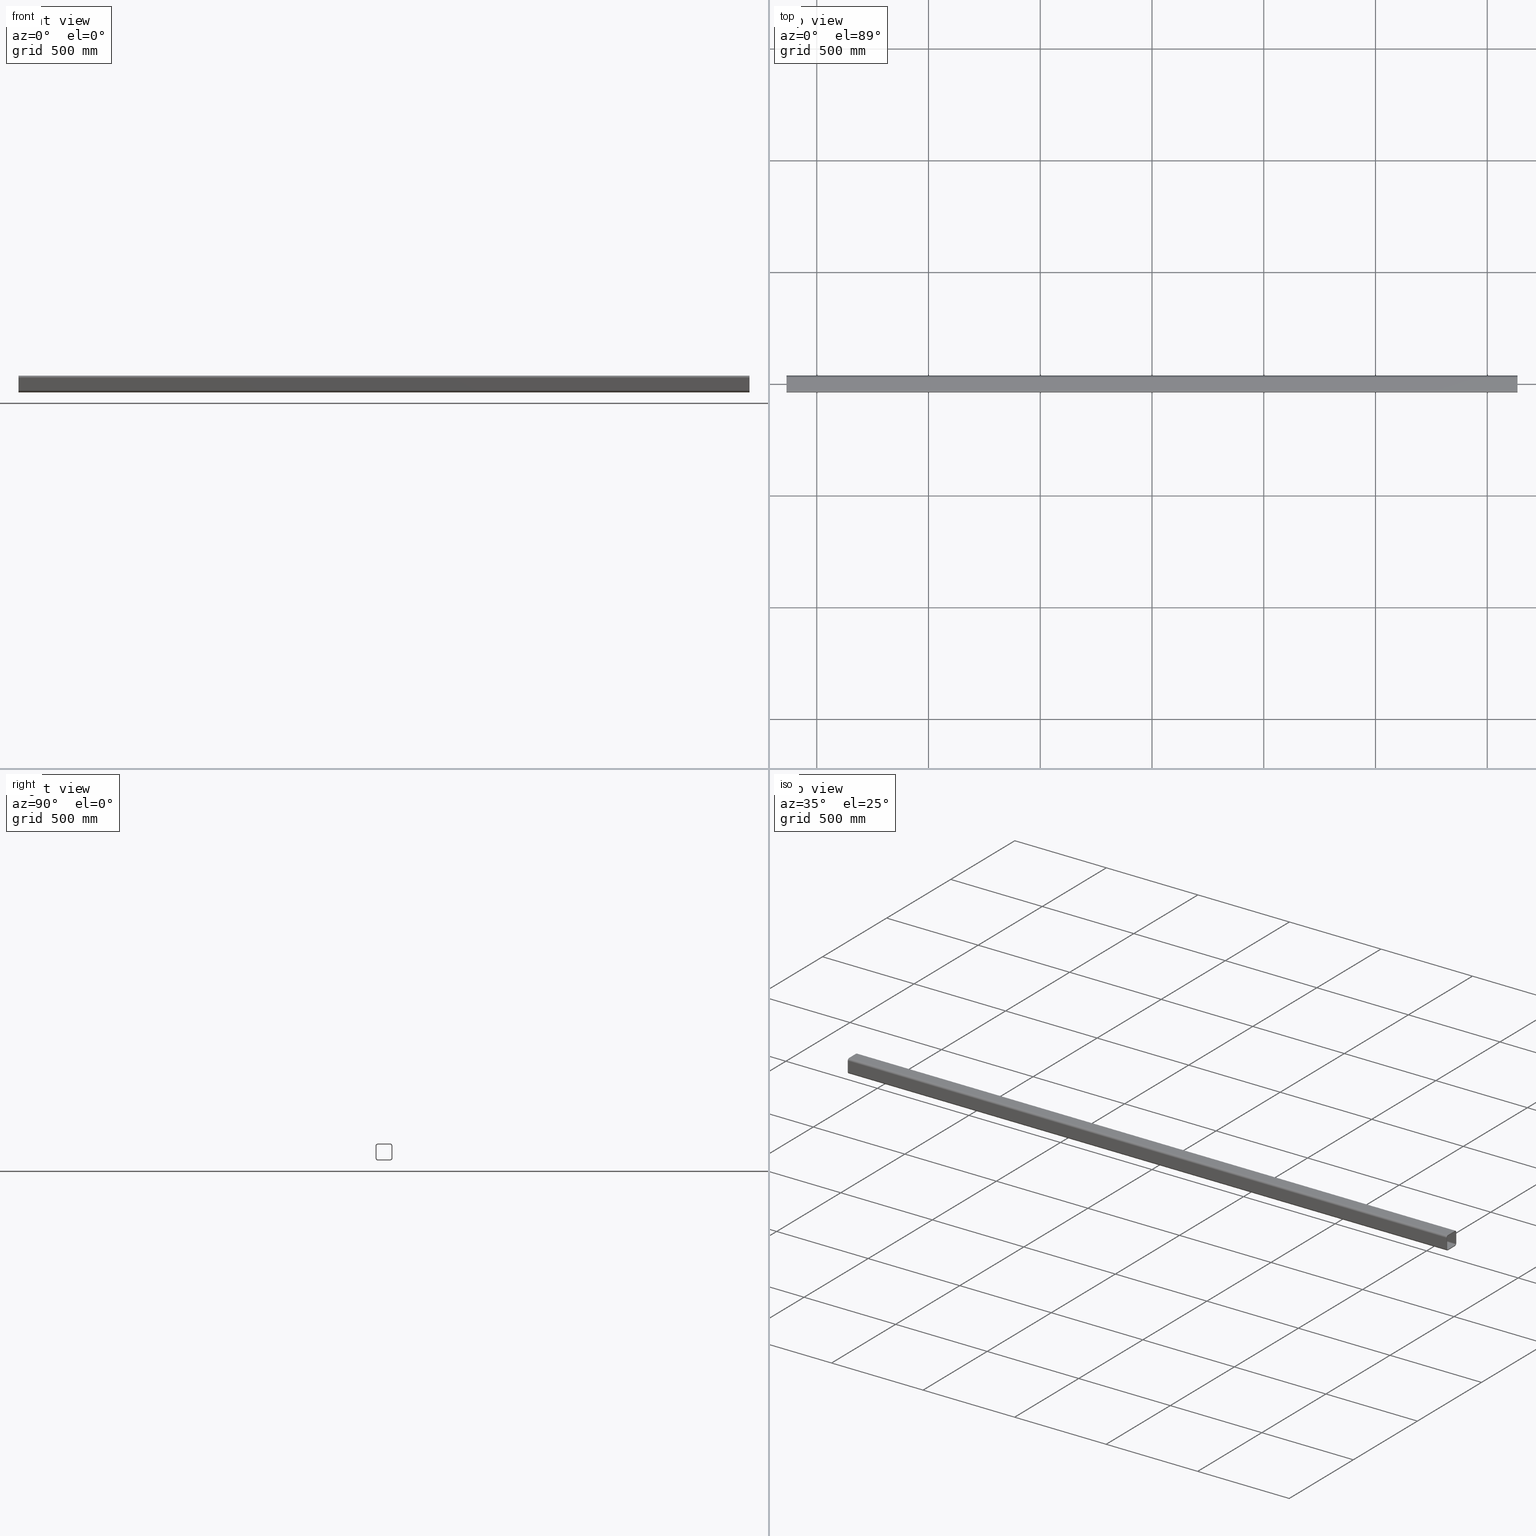
[diagram: canonical four-view strip — front | top / right | iso, engineering-drawing reading convention]
A machine part, canonical four-view strip (front | top / right | iso — engineering-drawing reading convention). The complete STEP part file that produces these views, byte-faithful:
ISO-10303-21;
HEADER;
FILE_DESCRIPTION (( 'STEP AP203' ),
    '1' );
FILE_NAME ('3982-32-10_REV_.step',
    '2026-01-19T05:59:23',
    ( '' ),
    ( '' ),
    'SwSTEP 2.0',
    'SolidWorks 2025',
    '' );
FILE_SCHEMA (( 'CONFIG_CONTROL_DESIGN' ));
ENDSEC;

DATA;
#1 = LINE ( 'NONE', #68, #85 ) ;
#2 = AXIS2_PLACEMENT_3D ( 'NONE', #314, #575, #317 ) ;
#3 = PLANE ( 'NONE',  #495 ) ;
#4 = EDGE_CURVE ( 'NONE', #432, #269, #474, .T. ) ;
#5 = CIRCLE ( 'NONE', #229, 6.000000000000019540 ) ;
#6 = ORIENTED_EDGE ( 'NONE', *, *, #499, .F. ) ;
#7 = CARTESIAN_POINT ( 'NONE',  ( 1635.500000000000000, 33.50000000000061817, -27.50000000000010303 ) ) ;
#8 = CC_DESIGN_PERSON_AND_ORGANIZATION_ASSIGNMENT ( #275, #630, ( #488 ) ) ;
#9 = CARTESIAN_POINT ( 'NONE',  ( -1635.500000000000000, -27.50000000000039790, 27.49999999999987210 ) ) ;
#10 = DIRECTION ( 'NONE',  ( 3.862588276837755925E-32, -1.261617073437677013E-16, -1.000000000000000000 ) ) ;
#11 = AXIS2_PLACEMENT_3D ( 'NONE', #408, #307, #349 ) ;
#12 = DIRECTION ( 'NONE',  ( -0.000000000000000000, 1.000000000000000000, -1.261617073437677506E-16 ) ) ;
#13 = CARTESIAN_POINT ( 'NONE',  ( -1635.500000000000000, 37.49999999999962341, -27.50000000000010303 ) ) ;
#14 = ORIENTED_EDGE ( 'NONE', *, *, #140, .F. ) ;
#15 = VECTOR ( 'NONE', #383, 1000.000000000000000 ) ;
#16 = EDGE_CURVE ( 'NONE', #217, #491, #237, .T. ) ;
#17 = PERSON_AND_ORGANIZATION ( #412, #467 ) ;
#18 = ORIENTED_EDGE ( 'NONE', *, *, #296, .T. ) ;
#19 = COORDINATED_UNIVERSAL_TIME_OFFSET ( 10, 0, .AHEAD. ) ;
#20 = CARTESIAN_POINT ( 'NONE',  ( -1635.500000000000000, -27.50000000000039790, -27.50000000000011369 ) ) ;
#21 = ORIENTED_EDGE ( 'NONE', *, *, #23, .F. ) ;
#22 = DIRECTION ( 'NONE',  ( 0.000000000000000000, 1.000000000000000000, 0.000000000000000000 ) ) ;
#23 = EDGE_CURVE ( 'NONE', #169, #606, #246, .T. ) ;
#24 = VERTEX_POINT ( 'NONE', #242 ) ;
#25 = VECTOR ( 'NONE', #191, 1000.000000000000000 ) ;
#26 = DATE_AND_TIME ( #222, #544 ) ;
#27 = CARTESIAN_POINT ( 'NONE',  ( 1635.500000000000000, 27.50000000000062528, -37.50000000000012790 ) ) ;
#28 = ORIENTED_EDGE ( 'NONE', *, *, #113, .T. ) ;
#29 = PERSON_AND_ORGANIZATION ( #412, #467 ) ;
#30 = CARTESIAN_POINT ( 'NONE',  ( 1635.500000000000000, -27.49999999999941735, -33.50000000000014211 ) ) ;
#31 = ORIENTED_EDGE ( 'NONE', *, *, #449, .T. ) ;
#32 = ADVANCED_FACE ( 'NONE', ( #147 ), #647, .T. ) ;
#33 = DIRECTION ( 'NONE',  ( 0.000000000000000000, -1.000000000000000000, 0.000000000000000000 ) ) ;
#34 = EDGE_LOOP ( 'NONE', ( #70, #382, #564, #300 ) ) ;
#35 = AXIS2_PLACEMENT_3D ( 'NONE', #425, #617, #90 ) ;
#36 = COORDINATED_UNIVERSAL_TIME_OFFSET ( 10, 0, .AHEAD. ) ;
#37 = VECTOR ( 'NONE', #634, 1000.000000000000000 ) ;
#38 = ADVANCED_FACE ( 'NONE', ( #190 ), #96, .T. ) ;
#39 = CARTESIAN_POINT ( 'NONE',  ( -1635.500000000000000, 27.49999999999962341, -37.50000000000012790 ) ) ;
#40 = EDGE_LOOP ( 'NONE', ( #622, #536, #315, #286 ) ) ;
#41 = SECURITY_CLASSIFICATION ( '', '', #569 ) ;
#42 = DIRECTION ( 'NONE',  ( -3.061616997868382648E-16, 1.000000000000000000, 0.000000000000000000 ) ) ;
#43 = ORIENTED_EDGE ( 'NONE', *, *, #4, .F. ) ;
#44 = ADVANCED_FACE ( 'NONE', ( #288 ), #487, .F. ) ;
#45 = CALENDAR_DATE ( 2026, 19, 1 ) ;
#46 = CARTESIAN_POINT ( 'NONE',  ( -1635.500000000000000, 27.49999999999962341, -37.50000000000012790 ) ) ;
#47 = ORIENTED_EDGE ( 'NONE', *, *, #333, .F. ) ;
#48 = LINE ( 'NONE', #549, #15 ) ;
#49 = AXIS2_PLACEMENT_3D ( 'NONE', #341, #226, #496 ) ;
#50 = ORIENTED_EDGE ( 'NONE', *, *, #311, .T. ) ;
#51 = APPROVAL_PERSON_ORGANIZATION ( #29, #176, #86 ) ;
#52 = DIRECTION ( 'NONE',  ( 1.000000000000000000, 3.061616997868382648E-16, -0.000000000000000000 ) ) ;
#53 = VERTEX_POINT ( 'NONE', #263 ) ;
#54 = EDGE_CURVE ( 'NONE', #269, #253, #208, .T. ) ;
#55 = DESIGN_CONTEXT ( 'detailed design', #198, 'design' ) ;
#56 = DIRECTION ( 'NONE',  ( -1.000000000000000000, -3.061616997868382648E-16, 0.000000000000000000 ) ) ;
#57 = FACE_OUTER_BOUND ( 'NONE', #183, .T. ) ;
#58 = ORIENTED_EDGE ( 'NONE', *, *, #397, .F. ) ;
#59 = FACE_OUTER_BOUND ( 'NONE', #547, .T. ) ;
#60 = ADVANCED_FACE ( 'NONE', ( #559 ), #158, .F. ) ;
#61 = PLANE ( 'NONE',  #179 ) ;
#62 = AXIS2_PLACEMENT_3D ( 'NONE', #446, #652, #112 ) ;
#63 = VERTEX_POINT ( 'NONE', #556 ) ;
#64 = FACE_OUTER_BOUND ( 'NONE', #340, .T. ) ;
#65 = CC_DESIGN_APPROVAL ( #194, ( #488 ) ) ;
#66 = DIRECTION ( 'NONE',  ( -1.000000000000000000, -3.061616997868382648E-16, 0.000000000000000000 ) ) ;
#67 = VERTEX_POINT ( 'NONE', #165 ) ;
#68 = CARTESIAN_POINT ( 'NONE',  ( -1635.500000000000000, -37.50000000000039790, 27.49999999999987566 ) ) ;
#69 = DIRECTION ( 'NONE',  ( 1.000000000000000000, 3.061616997868382648E-16, -0.000000000000000000 ) ) ;
#70 = ORIENTED_EDGE ( 'NONE', *, *, #499, .T. ) ;
#71 = ADVANCED_FACE ( 'NONE', ( #653 ), #3, .T. ) ;
#72 = DATE_AND_TIME ( #364, #577 ) ;
#73 = CARTESIAN_POINT ( 'NONE',  ( 1635.500000000000000, 27.50000000000062528, -27.50000000000010303 ) ) ;
#74 = ORIENTED_EDGE ( 'NONE', *, *, #369, .T. ) ;
#75 =( NAMED_UNIT ( * ) PLANE_ANGLE_UNIT ( ) SI_UNIT ( $, .RADIAN. ) );
#76 = LOCAL_TIME ( 16, 59, 23.00000000000000000, #36 ) ;
#77 = ORIENTED_EDGE ( 'NONE', *, *, #595, .T. ) ;
#78 = EDGE_CURVE ( 'NONE', #67, #63, #111, .T. ) ;
#79 = PLANE ( 'NONE',  #35 ) ;
#80 = VERTEX_POINT ( 'NONE', #567 ) ;
#81 = APPROVAL_STATUS ( 'not_yet_approved' ) ;
#82 = LINE ( 'NONE', #27, #228 ) ;
#83 = MANIFOLD_SOLID_BREP ( 'Shs 75X75X4.0 SHS(1)', #195 ) ;
#84 = ORIENTED_EDGE ( 'NONE', *, *, #480, .T. ) ;
#85 = VECTOR ( 'NONE', #566, 1000.000000000000000 ) ;
#86 = APPROVAL_ROLE ( '' ) ;
#87 = CARTESIAN_POINT ( 'NONE',  ( -1635.500000000000000, -27.50000000000041922, -33.50000000000014211 ) ) ;
#88 = EDGE_LOOP ( 'NONE', ( #31, #290, #186, #277 ) ) ;
#89 = EDGE_CURVE ( 'NONE', #305, #217, #417, .T. ) ;
#90 = DIRECTION ( 'NONE',  ( -1.000000000000000000, -3.061616997868382648E-16, 0.000000000000000000 ) ) ;
#91 = CC_DESIGN_PERSON_AND_ORGANIZATION_ASSIGNMENT ( #17, #360, ( #488 ) ) ;
#92 = APPROVAL_DATE_TIME ( #239, #187 ) ;
#93 = FACE_BOUND ( 'NONE', #462, .T. ) ;
#94 = ORIENTED_EDGE ( 'NONE', *, *, #358, .F. ) ;
#95 = PLANE ( 'NONE',  #251 ) ;
#96 = PLANE ( 'NONE',  #298 ) ;
#97 = DIRECTION ( 'NONE',  ( 1.000000000000000000, 3.061616997868382648E-16, -0.000000000000000000 ) ) ;
#98 = DIRECTION ( 'NONE',  ( -1.000000000000000000, -3.061616997868382648E-16, 0.000000000000000000 ) ) ;
#99 = DIRECTION ( 'NONE',  ( -3.862588276837757567E-32, 1.261617073437677506E-16, 1.000000000000000000 ) ) ;
#100 = CARTESIAN_POINT ( 'NONE',  ( -1635.500000000000000, -27.50000000000039790, -27.50000000000011369 ) ) ;
#101 = CARTESIAN_POINT ( 'NONE',  ( -1635.500000000000000, 33.49999999999962341, -27.50000000000010303 ) ) ;
#102 = VECTOR ( 'NONE', #585, 1000.000000000000000 ) ;
#103 = ORIENTED_EDGE ( 'NONE', *, *, #423, .T. ) ;
#104 = DIRECTION ( 'NONE',  ( -1.000000000000000000, -3.061616997868382648E-16, 0.000000000000000000 ) ) ;
#105 = CARTESIAN_POINT ( 'NONE',  ( 1635.500000000000000, -27.49999999999941735, 33.49999999999991473 ) ) ;
#106 = VERTEX_POINT ( 'NONE', #513 ) ;
#107 = ADVANCED_FACE ( 'NONE', ( #347 ), #114, .F. ) ;
#108 = CARTESIAN_POINT ( 'NONE',  ( 1635.500000000000000, 33.50000000000061817, 27.49999999999986144 ) ) ;
#109 = CARTESIAN_POINT ( 'NONE',  ( 1635.500000000000000, 33.50000000000061817, -27.50000000000010303 ) ) ;
#110 = VERTEX_POINT ( 'NONE', #105 ) ;
#111 = CIRCLE ( 'NONE', #11, 10.00000000000000533 ) ;
#112 = DIRECTION ( 'NONE',  ( -1.000000000000000000, -3.061616997868382648E-16, 0.000000000000000000 ) ) ;
#113 = EDGE_CURVE ( 'NONE', #422, #24, #530, .T. ) ;
#114 = CYLINDRICAL_SURFACE ( 'NONE', #377, 6.000000000000019540 ) ;
#115 = CARTESIAN_POINT ( 'NONE',  ( 1635.500000000000000, 27.50000000000062883, -37.50000000000011369 ) ) ;
#116 = CARTESIAN_POINT ( 'NONE',  ( -1635.500000000000000, -27.50000000000039790, 27.49999999999987210 ) ) ;
#117 = ORIENTED_EDGE ( 'NONE', *, *, #545, .F. ) ;
#118 = DIRECTION ( 'NONE',  ( 0.000000000000000000, 1.000000000000000000, 0.000000000000000000 ) ) ;
#119 = DIRECTION ( 'NONE',  ( -0.000000000000000000, -0.000000000000000000, -1.000000000000000000 ) ) ;
#120 = VERTEX_POINT ( 'NONE', #109 ) ;
#121 = CARTESIAN_POINT ( 'NONE',  ( -1635.500000000000000, -37.50000000000039790, -27.50000000000011724 ) ) ;
#122 = AXIS2_PLACEMENT_3D ( 'NONE', #20, #171, #273 ) ;
#123 = ORIENTED_EDGE ( 'NONE', *, *, #358, .T. ) ;
#124 = AXIS2_PLACEMENT_3D ( 'NONE', #433, #587, #638 ) ;
#125 = EDGE_CURVE ( 'NONE', #120, #436, #365, .T. ) ;
#126 = DATE_TIME_ROLE ( 'classification_date' ) ;
#127 = ORIENTED_EDGE ( 'NONE', *, *, #303, .F. ) ;
#128 = EDGE_CURVE ( 'NONE', #80, #348, #252, .T. ) ;
#129 = FACE_OUTER_BOUND ( 'NONE', #612, .T. ) ;
#130 = ORIENTED_EDGE ( 'NONE', *, *, #16, .T. ) ;
#131 = AXIS2_PLACEMENT_3D ( 'NONE', #611, #353, #396 ) ;
#132 = PERSON_AND_ORGANIZATION ( #412, #467 ) ;
#133 = CYLINDRICAL_SURFACE ( 'NONE', #122, 6.000000000000025757 ) ;
#134 = ADVANCED_FACE ( 'NONE', ( #57 ), #61, .F. ) ;
#135 = VERTEX_POINT ( 'NONE', #392 ) ;
#136 = AXIS2_PLACEMENT_3D ( 'NONE', #371, #428, #375 ) ;
#137 = CIRCLE ( 'NONE', #289, 6.000000000000019540 ) ;
#138 = DIRECTION ( 'NONE',  ( 0.000000000000000000, 1.000000000000000000, 0.000000000000000000 ) ) ;
#139 = CIRCLE ( 'NONE', #649, 10.00000000000000888 ) ;
#140 = EDGE_CURVE ( 'NONE', #110, #141, #615, .T. ) ;
#141 = VERTEX_POINT ( 'NONE', #504 ) ;
#142 = LINE ( 'NONE', #339, #452 ) ;
#143 = ORIENTED_EDGE ( 'NONE', *, *, #595, .F. ) ;
#144 = DIRECTION ( 'NONE',  ( 1.000000000000000000, 3.061616997868382648E-16, -0.000000000000000000 ) ) ;
#145 = CARTESIAN_POINT ( 'NONE',  ( -1635.500000000000000, 33.49999999999962341, 27.49999999999986144 ) ) ;
#146 = LINE ( 'NONE', #149, #394 ) ;
#147 = FACE_OUTER_BOUND ( 'NONE', #34, .T. ) ;
#148 = LINE ( 'NONE', #650, #209 ) ;
#149 = CARTESIAN_POINT ( 'NONE',  ( 1635.500000000000000, -33.49999999999941025, -27.50000000000008882 ) ) ;
#150 = ORIENTED_EDGE ( 'NONE', *, *, #614, .F. ) ;
#151 = CYLINDRICAL_SURFACE ( 'NONE', #292, 10.00000000000000888 ) ;
#152 = AXIS2_PLACEMENT_3D ( 'NONE', #73, #66, #299 ) ;
#153 = DIRECTION ( 'NONE',  ( 0.000000000000000000, 1.000000000000000000, 0.000000000000000000 ) ) ;
#154 = DIRECTION ( 'NONE',  ( 0.000000000000000000, 0.000000000000000000, 1.000000000000000000 ) ) ;
#155 = DIRECTION ( 'NONE',  ( -1.000000000000000000, -3.061616997868382648E-16, 0.000000000000000000 ) ) ;
#156 = VERTEX_POINT ( 'NONE', #457 ) ;
#157 = CARTESIAN_POINT ( 'NONE',  ( 1635.500000000000000, -37.49999999999940314, -27.50000000000011724 ) ) ;
#158 = PLANE ( 'NONE',  #131 ) ;
#159 = CARTESIAN_POINT ( 'NONE',  ( -1635.500000000000000, -33.50000000000041922, 27.49999999999987566 ) ) ;
#160 = CARTESIAN_POINT ( 'NONE',  ( -1635.500000000000000, -37.50000000000039790, -27.50000000000011724 ) ) ;
#161 = AXIS2_PLACEMENT_3D ( 'NONE', #554, #398, #259 ) ;
#162 = ORIENTED_EDGE ( 'NONE', *, *, #599, .F. ) ;
#163 = LINE ( 'NONE', #352, #464 ) ;
#164 = APPROVAL_PERSON_ORGANIZATION ( #316, #187, #583 ) ;
#165 = CARTESIAN_POINT ( 'NONE',  ( 1635.500000000000000, 27.50000000000062528, 37.49999999999987921 ) ) ;
#166 = LINE ( 'NONE', #121, #102 ) ;
#167 = EDGE_CURVE ( 'NONE', #606, #120, #570, .T. ) ;
#168 = CARTESIAN_POINT ( 'NONE',  ( -1635.500000000000000, 37.49999999999962341, -27.50000000000010303 ) ) ;
#169 = VERTEX_POINT ( 'NONE', #204 ) ;
#170 = CIRCLE ( 'NONE', #124, 6.000000000000023093 ) ;
#171 = DIRECTION ( 'NONE',  ( 1.000000000000000000, 3.061616997868382648E-16, -0.000000000000000000 ) ) ;
#172 = ORIENTED_EDGE ( 'NONE', *, *, #599, .T. ) ;
#173 = CALENDAR_DATE ( 2026, 19, 1 ) ;
#174 = DIRECTION ( 'NONE',  ( 0.000000000000000000, -1.000000000000000000, 1.261617073437677013E-16 ) ) ;
#175 = ORIENTED_EDGE ( 'NONE', *, *, #373, .T. ) ;
#176 = APPROVAL ( #81, 'UNSPECIFIED' ) ;
#177 = LINE ( 'NONE', #421, #565 ) ;
#178 = ORIENTED_EDGE ( 'NONE', *, *, #401, .T. ) ;
#179 = AXIS2_PLACEMENT_3D ( 'NONE', #13, #196, #453 ) ;
#180 = DIRECTION ( 'NONE',  ( 1.000000000000000000, 3.061616997868382648E-16, -0.000000000000000000 ) ) ;
#181 = AXIS2_PLACEMENT_3D ( 'NONE', #620, #374, #118 ) ;
#182 = PLANE ( 'NONE',  #624 ) ;
#183 = EDGE_LOOP ( 'NONE', ( #249, #258, #235, #326 ) ) ;
#184 = ADVANCED_FACE ( 'NONE', ( #310 ), #202, .T. ) ;
#185 = DIRECTION ( 'NONE',  ( -1.000000000000000000, -3.061616997868382648E-16, 0.000000000000000000 ) ) ;
#186 = ORIENTED_EDGE ( 'NONE', *, *, #627, .F. ) ;
#187 = APPROVAL ( #548, 'UNSPECIFIED' ) ;
#188 = VECTOR ( 'NONE', #402, 1000.000000000000000 ) ;
#189 = CARTESIAN_POINT ( 'NONE',  ( -1635.500000000000000, 27.49999999999962341, 33.49999999999987921 ) ) ;
#190 = FACE_OUTER_BOUND ( 'NONE', #505, .T. ) ;
#191 = DIRECTION ( 'NONE',  ( 0.000000000000000000, -1.000000000000000000, 1.261617073437677506E-16 ) ) ;
#192 = DIRECTION ( 'NONE',  ( 3.061616997868382648E-16, -1.000000000000000000, 0.000000000000000000 ) ) ;
#193 = DIRECTION ( 'NONE',  ( -1.000000000000000000, -3.061616997868382648E-16, 0.000000000000000000 ) ) ;
#194 = APPROVAL ( #427, 'UNSPECIFIED' ) ;
#195 = CLOSED_SHELL ( 'NONE', ( #553, #38, #44, #184, #107, #231, #244, #648, #134, #32, #430, #257, #518, #635, #60, #71, #490, #216 ) ) ;
#196 = DIRECTION ( 'NONE',  ( 3.061616997868382648E-16, -1.000000000000000000, 0.000000000000000000 ) ) ;
#197 = VECTOR ( 'NONE', #219, 1000.000000000000000 ) ;
#198 = APPLICATION_CONTEXT ( 'configuration controlled 3d designs of mechanical parts and assemblies' ) ;
#199 = DIRECTION ( 'NONE',  ( 0.000000000000000000, -1.000000000000000000, 0.000000000000000000 ) ) ;
#200 = CARTESIAN_POINT ( 'NONE',  ( -1635.500000000000000, 27.49999999999962341, -27.50000000000010303 ) ) ;
#201 = CARTESIAN_POINT ( 'NONE',  ( 1635.500000000000000, 27.50000000000062528, 27.49999999999986144 ) ) ;
#202 = PLANE ( 'NONE',  #519 ) ;
#203 = DIRECTION ( 'NONE',  ( -1.000000000000000000, -3.061616997868382648E-16, 0.000000000000000000 ) ) ;
#204 = CARTESIAN_POINT ( 'NONE',  ( -1635.500000000000000, 33.49999999999962341, 27.49999999999986144 ) ) ;
#205 = ORIENTED_EDGE ( 'NONE', *, *, #345, .T. ) ;
#206 = DIRECTION ( 'NONE',  ( 0.000000000000000000, 1.000000000000000000, 0.000000000000000000 ) ) ;
#207 = AXIS2_PLACEMENT_3D ( 'NONE', #241, #442, #33 ) ;
#208 = LINE ( 'NONE', #160, #438 ) ;
#209 = VECTOR ( 'NONE', #285, 1000.000000000000000 ) ;
#210 = ORIENTED_EDGE ( 'NONE', *, *, #437, .T. ) ;
#211 = DIRECTION ( 'NONE',  ( 0.000000000000000000, 0.000000000000000000, 1.000000000000000000 ) ) ;
#212 = DIRECTION ( 'NONE',  ( -0.000000000000000000, -0.000000000000000000, -1.000000000000000000 ) ) ;
#213 = ORIENTED_EDGE ( 'NONE', *, *, #140, .T. ) ;
#214 = DATE_TIME_ROLE ( 'creation_date' ) ;
#215 = DIRECTION ( 'NONE',  ( 1.000000000000000000, 3.061616997868382648E-16, -0.000000000000000000 ) ) ;
#216 = ADVANCED_FACE ( 'NONE', ( #294, #404 ), #248, .T. ) ;
#217 = VERTEX_POINT ( 'NONE', #625 ) ;
#218 = COORDINATED_UNIVERSAL_TIME_OFFSET ( 10, 0, .AHEAD. ) ;
#219 = DIRECTION ( 'NONE',  ( 1.000000000000000000, 3.061616997868382648E-16, -0.000000000000000000 ) ) ;
#220 = ORIENTED_EDGE ( 'NONE', *, *, #574, .T. ) ;
#221 = EDGE_CURVE ( 'NONE', #517, #497, #82, .T. ) ;
#222 = CALENDAR_DATE ( 2026, 19, 1 ) ;
#223 = APPROVAL_DATE_TIME ( #468, #176 ) ;
#224 = CARTESIAN_POINT ( 'NONE',  ( -1635.500000000000000, 27.49999999999962341, 27.49999999999986144 ) ) ;
#225 = EDGE_LOOP ( 'NONE', ( #376, #117, #416, #308 ) ) ;
#226 = DIRECTION ( 'NONE',  ( -1.000000000000000000, -3.061616997868382648E-16, 0.000000000000000000 ) ) ;
#227 = ORIENTED_EDGE ( 'NONE', *, *, #627, .T. ) ;
#228 = VECTOR ( 'NONE', #527, 1000.000000000000000 ) ;
#229 = AXIS2_PLACEMENT_3D ( 'NONE', #224, #378, #138 ) ;
#230 = DIRECTION ( 'NONE',  ( 0.000000000000000000, 2.523234146875357477E-16, 1.000000000000000000 ) ) ;
#231 = ADVANCED_FACE ( 'NONE', ( #524 ), #79, .T. ) ;
#232 = EDGE_LOOP ( 'NONE', ( #405, #47, #629, #130 ) ) ;
#233 = CARTESIAN_POINT ( 'NONE',  ( 1635.500000000000000, -33.49999999999941025, -27.50000000000008882 ) ) ;
#234 = EDGE_CURVE ( 'NONE', #156, #422, #268, .T. ) ;
#235 = ORIENTED_EDGE ( 'NONE', *, *, #234, .F. ) ;
#236 = DIRECTION ( 'NONE',  ( 0.000000000000000000, -1.000000000000000000, 1.261617073437677506E-16 ) ) ;
#237 = LINE ( 'NONE', #384, #539 ) ;
#238 = EDGE_CURVE ( 'NONE', #24, #517, #321, .T. ) ;
#239 = DATE_AND_TIME ( #45, #76 ) ;
#240 = VECTOR ( 'NONE', #276, 1000.000000000000000 ) ;
#241 = CARTESIAN_POINT ( 'NONE',  ( 1635.500000000000000, -27.49999999999939604, 27.49999999999987210 ) ) ;
#242 = CARTESIAN_POINT ( 'NONE',  ( -1635.500000000000000, 27.49999999999962697, -37.50000000000011369 ) ) ;
#243 = CC_DESIGN_SECURITY_CLASSIFICATION ( #41, ( #488 ) ) ;
#244 = ADVANCED_FACE ( 'NONE', ( #472 ), #133, .F. ) ;
#245 = DIRECTION ( 'NONE',  ( -0.000000000000000000, -0.000000000000000000, -1.000000000000000000 ) ) ;
#246 = LINE ( 'NONE', #145, #362 ) ;
#247 = DIRECTION ( 'NONE',  ( 1.000000000000000000, 3.061616997868382648E-16, -0.000000000000000000 ) ) ;
#248 = PLANE ( 'NONE',  #2 ) ;
#249 = ORIENTED_EDGE ( 'NONE', *, *, #379, .T. ) ;
#250 = VECTOR ( 'NONE', #212, 1000.000000000000000 ) ;
#251 = AXIS2_PLACEMENT_3D ( 'NONE', #284, #489, #42 ) ;
#252 = LINE ( 'NONE', #260, #419 ) ;
#253 = VERTEX_POINT ( 'NONE', #469 ) ;
#254 = AXIS2_PLACEMENT_3D ( 'NONE', #266, #211, #312 ) ;
#255 = CARTESIAN_POINT ( 'NONE',  ( -1635.500000000000000, 27.49999999999962341, -33.50000000000015632 ) ) ;
#256 = CARTESIAN_POINT ( 'NONE',  ( -1635.500000000000000, 27.49999999999962341, -33.50000000000015632 ) ) ;
#257 = ADVANCED_FACE ( 'NONE', ( #129 ), #578, .T. ) ;
#258 = ORIENTED_EDGE ( 'NONE', *, *, #281, .F. ) ;
#259 = DIRECTION ( 'NONE',  ( 0.000000000000000000, 1.000000000000000000, 0.000000000000000000 ) ) ;
#260 = CARTESIAN_POINT ( 'NONE',  ( -1635.500000000000000, -27.50000000000039080, 37.49999999999987921 ) ) ;
#261 = ORIENTED_EDGE ( 'NONE', *, *, #287, .T. ) ;
#262 = APPLICATION_PROTOCOL_DEFINITION ( 'international standard', 'config_control_design', 1994, #198 ) ;
#263 = CARTESIAN_POINT ( 'NONE',  ( 1635.500000000000000, 37.50000000000062528, -27.50000000000010303 ) ) ;
#264 = LOCAL_TIME ( 16, 59, 23.00000000000000000, #19 ) ;
#265 = PRODUCT_RELATED_PRODUCT_CATEGORY ( 'detail', '', ( #511 ) ) ;
#266 = CARTESIAN_POINT ( 'NONE',  ( 0.000000000000000000, 0.000000000000000000, 0.000000000000000000 ) ) ;
#267 = CC_DESIGN_APPROVAL ( #176, ( #459 ) ) ;
#268 = LINE ( 'NONE', #270, #250 ) ;
#269 = VERTEX_POINT ( 'NONE', #621 ) ;
#270 = CARTESIAN_POINT ( 'NONE',  ( -1635.500000000000000, 37.49999999999962341, -27.50000000000010303 ) ) ;
#271 = EDGE_LOOP ( 'NONE', ( #640, #18, #178, #568, #74, #213, #413, #426 ) ) ;
#272 = DATE_AND_TIME ( #173, #264 ) ;
#273 = DIRECTION ( 'NONE',  ( 0.000000000000000000, 1.000000000000000000, 0.000000000000000000 ) ) ;
#274 = ORIENTED_EDGE ( 'NONE', *, *, #493, .F. ) ;
#275 = PERSON_AND_ORGANIZATION ( #412, #467 ) ;
#276 = DIRECTION ( 'NONE',  ( 1.000000000000000000, 3.061616997868382648E-16, -0.000000000000000000 ) ) ;
#277 = ORIENTED_EDGE ( 'NONE', *, *, #128, .T. ) ;
#278 = CARTESIAN_POINT ( 'NONE',  ( -1635.500000000000000, 27.49999999999962341, -33.50000000000015632 ) ) ;
#279 = ORIENTED_EDGE ( 'NONE', *, *, #639, .T. ) ;
#280 = AXIS2_PLACEMENT_3D ( 'NONE', #100, #98, #342 ) ;
#281 = EDGE_CURVE ( 'NONE', #422, #53, #411, .T. ) ;
#282 = CARTESIAN_POINT ( 'NONE',  ( -1635.500000000000000, 37.49999999999962341, -27.50000000000010303 ) ) ;
#283 = ORIENTED_EDGE ( 'NONE', *, *, #591, .F. ) ;
#284 = CARTESIAN_POINT ( 'NONE',  ( -1635.500000000000000, 27.49999999999962341, 27.49999999999986144 ) ) ;
#285 = DIRECTION ( 'NONE',  ( 1.000000000000000000, 3.061616997868382648E-16, -0.000000000000000000 ) ) ;
#286 = ORIENTED_EDGE ( 'NONE', *, *, #545, .T. ) ;
#287 = EDGE_CURVE ( 'NONE', #253, #80, #643, .T. ) ;
#288 = FACE_OUTER_BOUND ( 'NONE', #329, .T. ) ;
#289 = AXIS2_PLACEMENT_3D ( 'NONE', #601, #104, #558 ) ;
#290 = ORIENTED_EDGE ( 'NONE', *, *, #393, .F. ) ;
#291 = ADVANCED_BREP_SHAPE_REPRESENTATION ( '3982-32-10_REV_', ( #83, #254 ), #454 ) ;
#292 = AXIS2_PLACEMENT_3D ( 'NONE', #9, #297, #206 ) ;
#293 = DIRECTION ( 'NONE',  ( 0.000000000000000000, 1.000000000000000000, 0.000000000000000000 ) ) ;
#294 = FACE_OUTER_BOUND ( 'NONE', #372, .T. ) ;
#295 = ORIENTED_EDGE ( 'NONE', *, *, #480, .F. ) ;
#296 = EDGE_CURVE ( 'NONE', #436, #338, #177, .T. ) ;
#297 = DIRECTION ( 'NONE',  ( 1.000000000000000000, 3.061616997868382648E-16, -0.000000000000000000 ) ) ;
#298 = AXIS2_PLACEMENT_3D ( 'NONE', #444, #192, #388 ) ;
#299 = DIRECTION ( 'NONE',  ( 0.000000000000000000, -1.000000000000000000, 0.000000000000000000 ) ) ;
#300 = ORIENTED_EDGE ( 'NONE', *, *, #281, .T. ) ;
#301 = LINE ( 'NONE', #406, #188 ) ;
#302 = AXIS2_PLACEMENT_3D ( 'NONE', #391, #56, #199 ) ;
#303 = EDGE_CURVE ( 'NONE', #400, #550, #328, .T. ) ;
#304 = DIRECTION ( 'NONE',  ( -0.000000000000000000, 1.000000000000000000, -1.261617073437677013E-16 ) ) ;
#305 = VERTEX_POINT ( 'NONE', #628 ) ;
#306 = LINE ( 'NONE', #255, #327 ) ;
#307 = DIRECTION ( 'NONE',  ( -1.000000000000000000, -3.061616997868382648E-16, 0.000000000000000000 ) ) ;
#308 = ORIENTED_EDGE ( 'NONE', *, *, #333, .T. ) ;
#309 = PERSON_AND_ORGANIZATION ( #412, #467 ) ;
#310 = FACE_OUTER_BOUND ( 'NONE', #538, .T. ) ;
#311 = EDGE_CURVE ( 'NONE', #217, #560, #465, .T. ) ;
#312 = DIRECTION ( 'NONE',  ( 1.000000000000000000, 0.000000000000000000, 0.000000000000000000 ) ) ;
#313 = CIRCLE ( 'NONE', #49, 6.000000000000023093 ) ;
#314 = CARTESIAN_POINT ( 'NONE',  ( 1635.500000000000000, 27.50000000000062528, 27.49999999999986144 ) ) ;
#315 = ORIENTED_EDGE ( 'NONE', *, *, #493, .T. ) ;
#316 = PERSON_AND_ORGANIZATION ( #412, #467 ) ;
#317 = DIRECTION ( 'NONE',  ( -3.061616997868382648E-16, 1.000000000000000000, 0.000000000000000000 ) ) ;
#318 = VERTEX_POINT ( 'NONE', #573 ) ;
#319 = MECHANICAL_CONTEXT ( 'NONE', #443, 'mechanical' ) ;
#320 = EDGE_CURVE ( 'NONE', #269, #552, #166, .T. ) ;
#321 = LINE ( 'NONE', #361, #645 ) ;
#322 = ORIENTED_EDGE ( 'NONE', *, *, #591, .T. ) ;
#323 = AXIS2_PLACEMENT_3D ( 'NONE', #597, #600, #153 ) ;
#324 = CARTESIAN_POINT ( 'NONE',  ( -1635.500000000000000, 27.49999999999962341, 33.49999999999990763 ) ) ;
#325 = CC_DESIGN_PERSON_AND_ORGANIZATION_ASSIGNMENT ( #526, #418, ( #511 ) ) ;
#326 = ORIENTED_EDGE ( 'NONE', *, *, #528, .T. ) ;
#327 = VECTOR ( 'NONE', #346, 1000.000000000000000 ) ;
#328 = LINE ( 'NONE', #324, #603 ) ;
#329 = EDGE_LOOP ( 'NONE', ( #354, #475, #205, #484 ) ) ;
#330 = SHAPE_DEFINITION_REPRESENTATION ( #403, #291 ) ;
#331 = FACE_OUTER_BOUND ( 'NONE', #609, .T. ) ;
#332 = CARTESIAN_POINT ( 'NONE',  ( -1635.500000000000000, 27.49999999999962341, -27.50000000000010303 ) ) ;
#333 = EDGE_CURVE ( 'NONE', #305, #338, #533, .T. ) ;
#334 = CARTESIAN_POINT ( 'NONE',  ( -1635.500000000000000, 27.49999999999962341, 37.49999999999987921 ) ) ;
#335 = EDGE_LOOP ( 'NONE', ( #586, #94, #172, #322 ) ) ;
#336 = CIRCLE ( 'NONE', #441, 6.000000000000023093 ) ;
#337 = DIRECTION ( 'NONE',  ( 0.000000000000000000, -1.000000000000000000, 1.261617073437677013E-16 ) ) ;
#338 = VERTEX_POINT ( 'NONE', #30 ) ;
#339 = CARTESIAN_POINT ( 'NONE',  ( -1635.500000000000000, -27.50000000000039080, -37.50000000000012079 ) ) ;
#340 = EDGE_LOOP ( 'NONE', ( #77, #351, #470, #514 ) ) ;
#341 = CARTESIAN_POINT ( 'NONE',  ( 1635.500000000000000, -27.49999999999939604, 27.49999999999987210 ) ) ;
#342 = DIRECTION ( 'NONE',  ( 0.000000000000000000, 1.000000000000000000, 0.000000000000000000 ) ) ;
#343 = VECTOR ( 'NONE', #581, 1000.000000000000000 ) ;
#344 = CARTESIAN_POINT ( 'NONE',  ( -1635.500000000000000, 27.49999999999962341, 33.49999999999990763 ) ) ;
#345 = EDGE_CURVE ( 'NONE', #550, #169, #5, .T. ) ;
#346 = DIRECTION ( 'NONE',  ( 1.000000000000000000, 3.061616997868382648E-16, -0.000000000000000000 ) ) ;
#347 = FACE_OUTER_BOUND ( 'NONE', #335, .T. ) ;
#348 = VERTEX_POINT ( 'NONE', #535 ) ;
#349 = DIRECTION ( 'NONE',  ( 0.000000000000000000, 1.000000000000000000, 0.000000000000000000 ) ) ;
#350 = AXIS2_PLACEMENT_3D ( 'NONE', #602, #563, #510 ) ;
#351 = ORIENTED_EDGE ( 'NONE', *, *, #574, .F. ) ;
#352 = CARTESIAN_POINT ( 'NONE',  ( -1635.500000000000000, 27.49999999999962341, 37.49999999999987921 ) ) ;
#353 = DIRECTION ( 'NONE',  ( 3.862588276837757567E-32, -1.261617073437677506E-16, -1.000000000000000000 ) ) ;
#354 = ORIENTED_EDGE ( 'NONE', *, *, #540, .F. ) ;
#355 = CC_DESIGN_APPROVAL ( #187, ( #41 ) ) ;
#356 = LINE ( 'NONE', #460, #584 ) ;
#357 = CARTESIAN_POINT ( 'NONE',  ( 1635.500000000000000, 27.50000000000062528, 33.49999999999990763 ) ) ;
#358 = EDGE_CURVE ( 'NONE', #560, #318, #148, .T. ) ;
#359 = ORIENTED_EDGE ( 'NONE', *, *, #415, .F. ) ;
#360 = PERSON_AND_ORGANIZATION_ROLE ( 'creator' ) ;
#361 = CARTESIAN_POINT ( 'NONE',  ( -1635.500000000000000, 27.49999999999962697, -37.50000000000011369 ) ) ;
#362 = VECTOR ( 'NONE', #594, 1000.000000000000000 ) ;
#363 = ORIENTED_EDGE ( 'NONE', *, *, #287, .F. ) ;
#364 = CALENDAR_DATE ( 2026, 19, 1 ) ;
#365 = CIRCLE ( 'NONE', #152, 6.000000000000023093 ) ;
#366 = VECTOR ( 'NONE', #598, 1000.000000000000000 ) ;
#367 = DIRECTION ( 'NONE',  ( 1.000000000000000000, 3.061616997868382648E-16, -0.000000000000000000 ) ) ;
#368 = ORIENTED_EDGE ( 'NONE', *, *, #373, .F. ) ;
#369 = EDGE_CURVE ( 'NONE', #318, #110, #313, .T. ) ;
#370 =( NAMED_UNIT ( * ) SI_UNIT ( $, .STERADIAN. ) SOLID_ANGLE_UNIT ( ) );
#371 = CARTESIAN_POINT ( 'NONE',  ( -1635.500000000000000, -27.50000000000039790, 27.49999999999987210 ) ) ;
#372 = EDGE_LOOP ( 'NONE', ( #429, #534, #295, #143, #494, #482, #6, #651 ) ) ;
#373 = EDGE_CURVE ( 'NONE', #24, #432, #596, .T. ) ;
#374 = DIRECTION ( 'NONE',  ( 1.000000000000000000, 3.061616997868382648E-16, -0.000000000000000000 ) ) ;
#375 = DIRECTION ( 'NONE',  ( 0.000000000000000000, -1.000000000000000000, 0.000000000000000000 ) ) ;
#376 = ORIENTED_EDGE ( 'NONE', *, *, #296, .F. ) ;
#377 = AXIS2_PLACEMENT_3D ( 'NONE', #116, #69, #605 ) ;
#378 = DIRECTION ( 'NONE',  ( -1.000000000000000000, -3.061616997868382648E-16, 0.000000000000000000 ) ) ;
#379 = EDGE_CURVE ( 'NONE', #63, #53, #492, .T. ) ;
#380 = ORIENTED_EDGE ( 'NONE', *, *, #311, .F. ) ;
#381 = CARTESIAN_POINT ( 'NONE',  ( -1635.500000000000000, 27.49999999999962341, -33.50000000000015632 ) ) ;
#382 = ORIENTED_EDGE ( 'NONE', *, *, #238, .F. ) ;
#383 = DIRECTION ( 'NONE',  ( 1.000000000000000000, 3.061616997868382648E-16, -0.000000000000000000 ) ) ;
#384 = CARTESIAN_POINT ( 'NONE',  ( -1635.500000000000000, -33.50000000000041211, -27.50000000000008882 ) ) ;
#385 = DIRECTION ( 'NONE',  ( 0.000000000000000000, -1.000000000000000000, 0.000000000000000000 ) ) ;
#386 = ORIENTED_EDGE ( 'NONE', *, *, #167, .F. ) ;
#387 = CARTESIAN_POINT ( 'NONE',  ( 1635.500000000000000, 37.50000000000062528, -27.50000000000010303 ) ) ;
#388 = DIRECTION ( 'NONE',  ( 1.000000000000000000, 3.061616997868382648E-16, 0.000000000000000000 ) ) ;
#389 = LINE ( 'NONE', #541, #593 ) ;
#390 = EDGE_LOOP ( 'NONE', ( #455, #579, #529, #501 ) ) ;
#391 = CARTESIAN_POINT ( 'NONE',  ( 1635.500000000000000, 27.50000000000062528, -27.50000000000010303 ) ) ;
#392 = CARTESIAN_POINT ( 'NONE',  ( -1635.500000000000000, 33.49999999999962341, -27.50000000000010303 ) ) ;
#393 = EDGE_CURVE ( 'NONE', #458, #67, #389, .T. ) ;
#394 = VECTOR ( 'NONE', #230, 1000.000000000000000 ) ;
#395 = LINE ( 'NONE', #604, #532 ) ;
#396 = DIRECTION ( 'NONE',  ( 0.000000000000000000, 1.000000000000000000, -1.261617073437677506E-16 ) ) ;
#397 = EDGE_CURVE ( 'NONE', #491, #318, #146, .T. ) ;
#398 = DIRECTION ( 'NONE',  ( -1.000000000000000000, -3.061616997868382648E-16, 0.000000000000000000 ) ) ;
#399 = DIRECTION ( 'NONE',  ( 0.000000000000000000, 1.000000000000000000, -1.261617073437677013E-16 ) ) ;
#400 = VERTEX_POINT ( 'NONE', #551 ) ;
#401 = EDGE_CURVE ( 'NONE', #338, #491, #170, .T. ) ;
#402 = DIRECTION ( 'NONE',  ( 1.000000000000000000, 3.061616997868382648E-16, -0.000000000000000000 ) ) ;
#403 = PRODUCT_DEFINITION_SHAPE ( 'NONE', 'NONE',  #459 ) ;
#404 = FACE_BOUND ( 'NONE', #271, .T. ) ;
#405 = ORIENTED_EDGE ( 'NONE', *, *, #401, .F. ) ;
#406 = CARTESIAN_POINT ( 'NONE',  ( -1635.500000000000000, 37.49999999999962341, 27.49999999999986144 ) ) ;
#407 = AXIS2_PLACEMENT_3D ( 'NONE', #201, #193, #512 ) ;
#408 = CARTESIAN_POINT ( 'NONE',  ( 1635.500000000000000, 27.50000000000062528, 27.49999999999986144 ) ) ;
#409 = APPROVAL_PERSON_ORGANIZATION ( #481, #194, #476 ) ;
#410 = CYLINDRICAL_SURFACE ( 'NONE', #181, 10.00000000000000888 ) ;
#411 = LINE ( 'NONE', #168, #197 ) ;
#412 = PERSON ( 'UNSPECIFIED', 'UNSPECIFIED', 'UNSPECIFIED', ('UNSPECIFIED'), ('UNSPECIFIED'), ('UNSPECIFIED') ) ;
#413 = ORIENTED_EDGE ( 'NONE', *, *, #540, .T. ) ;
#414 = COORDINATED_UNIVERSAL_TIME_OFFSET ( 10, 0, .AHEAD. ) ;
#415 = EDGE_CURVE ( 'NONE', #434, #305, #431, .T. ) ;
#416 = ORIENTED_EDGE ( 'NONE', *, *, #415, .T. ) ;
#417 = CIRCLE ( 'NONE', #350, 6.000000000000025757 ) ;
#418 = PERSON_AND_ORGANIZATION_ROLE ( 'design_owner' ) ;
#419 = VECTOR ( 'NONE', #461, 1000.000000000000000 ) ;
#420 = CIRCLE ( 'NONE', #302, 10.00000000000001243 ) ;
#421 = CARTESIAN_POINT ( 'NONE',  ( 1635.500000000000000, 27.50000000000062528, -33.50000000000015632 ) ) ;
#422 = VERTEX_POINT ( 'NONE', #282 ) ;
#423 = EDGE_CURVE ( 'NONE', #432, #497, #142, .T. ) ;
#424 = PERSON_AND_ORGANIZATION_ROLE ( 'creator' ) ;
#425 = CARTESIAN_POINT ( 'NONE',  ( -1635.500000000000000, -33.50000000000041211, -27.50000000000008882 ) ) ;
#426 = ORIENTED_EDGE ( 'NONE', *, *, #167, .T. ) ;
#427 = APPROVAL_STATUS ( 'not_yet_approved' ) ;
#428 = DIRECTION ( 'NONE',  ( -1.000000000000000000, -3.061616997868382648E-16, 0.000000000000000000 ) ) ;
#429 = ORIENTED_EDGE ( 'NONE', *, *, #78, .F. ) ;
#430 = ADVANCED_FACE ( 'NONE', ( #331 ), #182, .F. ) ;
#431 = LINE ( 'NONE', #381, #486 ) ;
#432 = VERTEX_POINT ( 'NONE', #439 ) ;
#433 = CARTESIAN_POINT ( 'NONE',  ( 1635.500000000000000, -27.49999999999939604, -27.50000000000011369 ) ) ;
#434 = VERTEX_POINT ( 'NONE', #278 ) ;
#435 = CARTESIAN_POINT ( 'NONE',  ( -1635.500000000000000, 27.49999999999962341, -27.50000000000010303 ) ) ;
#436 = VERTEX_POINT ( 'NONE', #641 ) ;
#437 = EDGE_CURVE ( 'NONE', #550, #141, #644, .T. ) ;
#438 = VECTOR ( 'NONE', #608, 1000.000000000000000 ) ;
#439 = CARTESIAN_POINT ( 'NONE',  ( -1635.500000000000000, -27.50000000000039080, -37.50000000000012079 ) ) ;
#440 = EDGE_LOOP ( 'NONE', ( #279, #466, #28, #175, #642, #507, #261, #227 ) ) ;
#441 = AXIS2_PLACEMENT_3D ( 'NONE', #435, #185, #385 ) ;
#442 = DIRECTION ( 'NONE',  ( -1.000000000000000000, -3.061616997868382648E-16, 0.000000000000000000 ) ) ;
#443 = APPLICATION_CONTEXT ( 'configuration controlled 3d designs of mechanical parts and assemblies' ) ;
#444 = CARTESIAN_POINT ( 'NONE',  ( -1635.500000000000000, 33.49999999999962341, -27.50000000000010303 ) ) ;
#445 = EDGE_CURVE ( 'NONE', #135, #120, #48, .T. ) ;
#446 = CARTESIAN_POINT ( 'NONE',  ( -1635.500000000000000, -37.50000000000039790, -27.50000000000011724 ) ) ;
#447 = DIRECTION ( 'NONE',  ( 1.000000000000000000, 3.061616997868382648E-16, -0.000000000000000000 ) ) ;
#448 = PLANE ( 'NONE',  #62 ) ;
#449 = EDGE_CURVE ( 'NONE', #348, #67, #483, .T. ) ;
#450 = DIRECTION ( 'NONE',  ( 0.000000000000000000, -1.000000000000000000, 1.261617073437677013E-16 ) ) ;
#451 = ORIENTED_EDGE ( 'NONE', *, *, #238, .T. ) ;
#452 = VECTOR ( 'NONE', #546, 1000.000000000000000 ) ;
#453 = DIRECTION ( 'NONE',  ( 1.000000000000000000, 3.061616997868382648E-16, 0.000000000000000000 ) ) ;
#454 =( GEOMETRIC_REPRESENTATION_CONTEXT ( 3 ) GLOBAL_UNCERTAINTY_ASSIGNED_CONTEXT ( ( #637 ) ) GLOBAL_UNIT_ASSIGNED_CONTEXT ( ( #572, #75, #370 ) ) REPRESENTATION_CONTEXT ( 'NONE', 'WORKASPACE' ) );
#455 = ORIENTED_EDGE ( 'NONE', *, *, #78, .T. ) ;
#456 = LINE ( 'NONE', #101, #633 ) ;
#457 = CARTESIAN_POINT ( 'NONE',  ( -1635.500000000000000, 37.49999999999962341, 27.49999999999986144 ) ) ;
#458 = VERTEX_POINT ( 'NONE', #334 ) ;
#459 = PRODUCT_DEFINITION ( 'UNKNOWN', '', #488, #55 ) ;
#460 = CARTESIAN_POINT ( 'NONE',  ( 1635.500000000000000, -37.49999999999940314, -27.50000000000011724 ) ) ;
#461 = DIRECTION ( 'NONE',  ( 1.000000000000000000, 3.061616997868382648E-16, -0.000000000000000000 ) ) ;
#462 = EDGE_LOOP ( 'NONE', ( #274, #150, #626, #127, #162, #380, #543, #359 ) ) ;
#463 = AXIS2_PLACEMENT_3D ( 'NONE', #200, #155, #506 ) ;
#464 = VECTOR ( 'NONE', #12, 1000.000000000000000 ) ;
#465 = LINE ( 'NONE', #631, #343 ) ;
#466 = ORIENTED_EDGE ( 'NONE', *, *, #234, .T. ) ;
#467 = ORGANIZATION ( 'UNSPECIFIED', 'UNSPECIFIED', '' ) ;
#468 = DATE_AND_TIME ( #616, #555 ) ;
#469 = CARTESIAN_POINT ( 'NONE',  ( -1635.500000000000000, -37.50000000000039790, 27.49999999999987566 ) ) ;
#470 = ORIENTED_EDGE ( 'NONE', *, *, #54, .F. ) ;
#471 = PERSON_AND_ORGANIZATION_ROLE ( 'classification_officer' ) ;
#472 = FACE_OUTER_BOUND ( 'NONE', #232, .T. ) ;
#473 = CC_DESIGN_DATE_AND_TIME_ASSIGNMENT ( #72, #126, ( #41 ) ) ;
#474 = CIRCLE ( 'NONE', #280, 10.00000000000000888 ) ;
#475 = ORIENTED_EDGE ( 'NONE', *, *, #437, .F. ) ;
#476 = APPROVAL_ROLE ( '' ) ;
#477 = VECTOR ( 'NONE', #304, 1000.000000000000000 ) ;
#478 = VECTOR ( 'NONE', #144, 1000.000000000000000 ) ;
#479 = DIRECTION ( 'NONE',  ( -0.000000000000000000, 1.000000000000000000, -1.261617073437677013E-16 ) ) ;
#480 = EDGE_CURVE ( 'NONE', #106, #348, #542, .T. ) ;
#481 = PERSON_AND_ORGANIZATION ( #412, #467 ) ;
#482 = ORIENTED_EDGE ( 'NONE', *, *, #221, .F. ) ;
#483 = LINE ( 'NONE', #485, #366 ) ;
#484 = ORIENTED_EDGE ( 'NONE', *, *, #23, .T. ) ;
#485 = CARTESIAN_POINT ( 'NONE',  ( 1635.500000000000000, 27.50000000000062528, 37.49999999999987921 ) ) ;
#486 = VECTOR ( 'NONE', #337, 1000.000000000000000 ) ;
#487 = CYLINDRICAL_SURFACE ( 'NONE', #323, 6.000000000000019540 ) ;
#488 = PRODUCT_DEFINITION_FORMATION_WITH_SPECIFIED_SOURCE ( 'ANY', '', #511, .NOT_KNOWN. ) ;
#489 = DIRECTION ( 'NONE',  ( 1.000000000000000000, 3.061616997868382648E-16, -0.000000000000000000 ) ) ;
#490 = ADVANCED_FACE ( 'NONE', ( #537, #93 ), #95, .F. ) ;
#491 = VERTEX_POINT ( 'NONE', #233 ) ;
#492 = LINE ( 'NONE', #387, #37 ) ;
#493 = EDGE_CURVE ( 'NONE', #135, #434, #336, .T. ) ;
#494 = ORIENTED_EDGE ( 'NONE', *, *, #589, .F. ) ;
#495 = AXIS2_PLACEMENT_3D ( 'NONE', #256, #516, #450 ) ;
#496 = DIRECTION ( 'NONE',  ( 0.000000000000000000, -1.000000000000000000, 0.000000000000000000 ) ) ;
#497 = VERTEX_POINT ( 'NONE', #592 ) ;
#498 = CIRCLE ( 'NONE', #161, 10.00000000000000533 ) ;
#499 = EDGE_CURVE ( 'NONE', #53, #517, #420, .T. ) ;
#500 = FACE_OUTER_BOUND ( 'NONE', #40, .T. ) ;
#501 = ORIENTED_EDGE ( 'NONE', *, *, #393, .T. ) ;
#502 = CC_DESIGN_PERSON_AND_ORGANIZATION_ASSIGNMENT ( #309, #471, ( #41 ) ) ;
#503 = FACE_OUTER_BOUND ( 'NONE', #390, .T. ) ;
#504 = CARTESIAN_POINT ( 'NONE',  ( 1635.500000000000000, 27.50000000000062528, 33.49999999999987921 ) ) ;
#505 = EDGE_LOOP ( 'NONE', ( #386, #21, #636, #590 ) ) ;
#506 = DIRECTION ( 'NONE',  ( 0.000000000000000000, -1.000000000000000000, 0.000000000000000000 ) ) ;
#507 = ORIENTED_EDGE ( 'NONE', *, *, #54, .T. ) ;
#508 = CIRCLE ( 'NONE', #407, 6.000000000000015987 ) ;
#509 = CARTESIAN_POINT ( 'NONE',  ( -1635.500000000000000, 27.49999999999962341, 33.49999999999987921 ) ) ;
#510 = DIRECTION ( 'NONE',  ( 0.000000000000000000, 1.000000000000000000, 0.000000000000000000 ) ) ;
#511 = PRODUCT ( '3982-32-10_REV_', '3982-32-10_REV_', '', ( #319 ) ) ;
#512 = DIRECTION ( 'NONE',  ( 0.000000000000000000, 1.000000000000000000, 0.000000000000000000 ) ) ;
#513 = CARTESIAN_POINT ( 'NONE',  ( 1635.500000000000000, -37.49999999999940314, 27.49999999999987566 ) ) ;
#514 = ORIENTED_EDGE ( 'NONE', *, *, #320, .T. ) ;
#515 = COORDINATED_UNIVERSAL_TIME_OFFSET ( 10, 0, .AHEAD. ) ;
#516 = DIRECTION ( 'NONE',  ( -3.862588276837755925E-32, 1.261617073437677013E-16, 1.000000000000000000 ) ) ;
#517 = VERTEX_POINT ( 'NONE', #115 ) ;
#518 = ADVANCED_FACE ( 'NONE', ( #64 ), #448, .F. ) ;
#519 = AXIS2_PLACEMENT_3D ( 'NONE', #344, #10, #399 ) ;
#520 = APPROVAL_DATE_TIME ( #26, #194 ) ;
#521 = CARTESIAN_POINT ( 'NONE',  ( -1635.500000000000000, -27.50000000000039790, -27.50000000000011369 ) ) ;
#522 = ORIENTED_EDGE ( 'NONE', *, *, #128, .F. ) ;
#523 = CC_DESIGN_DATE_AND_TIME_ASSIGNMENT ( #272, #214, ( #459 ) ) ;
#524 = FACE_OUTER_BOUND ( 'NONE', #619, .T. ) ;
#525 = ORIENTED_EDGE ( 'NONE', *, *, #589, .T. ) ;
#526 = PERSON_AND_ORGANIZATION ( #412, #467 ) ;
#527 = DIRECTION ( 'NONE',  ( 0.000000000000000000, -1.000000000000000000, 1.261617073437677506E-16 ) ) ;
#528 = EDGE_CURVE ( 'NONE', #156, #63, #301, .T. ) ;
#529 = ORIENTED_EDGE ( 'NONE', *, *, #639, .F. ) ;
#530 = CIRCLE ( 'NONE', #463, 10.00000000000001243 ) ;
#531 = VECTOR ( 'NONE', #119, 1000.000000000000000 ) ;
#532 = VECTOR ( 'NONE', #52, 1000.000000000000000 ) ;
#533 = LINE ( 'NONE', #87, #240 ) ;
#534 = ORIENTED_EDGE ( 'NONE', *, *, #449, .F. ) ;
#535 = CARTESIAN_POINT ( 'NONE',  ( 1635.500000000000000, -27.49999999999938893, 37.49999999999987921 ) ) ;
#536 = ORIENTED_EDGE ( 'NONE', *, *, #445, .F. ) ;
#537 = FACE_OUTER_BOUND ( 'NONE', #440, .T. ) ;
#538 = EDGE_LOOP ( 'NONE', ( #14, #283, #557, #210 ) ) ;
#539 = VECTOR ( 'NONE', #447, 1000.000000000000000 ) ;
#540 = EDGE_CURVE ( 'NONE', #141, #606, #508, .T. ) ;
#541 = CARTESIAN_POINT ( 'NONE',  ( -1635.500000000000000, 27.49999999999962341, 37.49999999999987921 ) ) ;
#542 = CIRCLE ( 'NONE', #207, 10.00000000000001243 ) ;
#543 = ORIENTED_EDGE ( 'NONE', *, *, #89, .F. ) ;
#544 = LOCAL_TIME ( 16, 59, 23.00000000000000000, #414 ) ;
#545 = EDGE_CURVE ( 'NONE', #434, #436, #306, .T. ) ;
#546 = DIRECTION ( 'NONE',  ( 1.000000000000000000, 3.061616997868382648E-16, -0.000000000000000000 ) ) ;
#547 = EDGE_LOOP ( 'NONE', ( #84, #522, #363, #220 ) ) ;
#548 = APPROVAL_STATUS ( 'not_yet_approved' ) ;
#549 = CARTESIAN_POINT ( 'NONE',  ( -1635.500000000000000, 33.49999999999962341, -27.50000000000010303 ) ) ;
#550 = VERTEX_POINT ( 'NONE', #509 ) ;
#551 = CARTESIAN_POINT ( 'NONE',  ( -1635.500000000000000, -27.50000000000041922, 33.49999999999991473 ) ) ;
#552 = VERTEX_POINT ( 'NONE', #157 ) ;
#553 = ADVANCED_FACE ( 'NONE', ( #500 ), #613, .F. ) ;
#554 = CARTESIAN_POINT ( 'NONE',  ( 1635.500000000000000, -27.49999999999939604, -27.50000000000011369 ) ) ;
#555 = LOCAL_TIME ( 16, 59, 23.00000000000000000, #218 ) ;
#556 = CARTESIAN_POINT ( 'NONE',  ( 1635.500000000000000, 37.50000000000062528, 27.49999999999986144 ) ) ;
#557 = ORIENTED_EDGE ( 'NONE', *, *, #303, .T. ) ;
#558 = DIRECTION ( 'NONE',  ( 0.000000000000000000, -1.000000000000000000, 0.000000000000000000 ) ) ;
#559 = FACE_OUTER_BOUND ( 'NONE', #88, .T. ) ;
#560 = VERTEX_POINT ( 'NONE', #159 ) ;
#561 = AXIS2_PLACEMENT_3D ( 'NONE', #332, #180, #588 ) ;
#562 = CARTESIAN_POINT ( 'NONE',  ( -1635.500000000000000, 27.49999999999962341, -27.50000000000010303 ) ) ;
#563 = DIRECTION ( 'NONE',  ( -1.000000000000000000, -3.061616997868382648E-16, 0.000000000000000000 ) ) ;
#564 = ORIENTED_EDGE ( 'NONE', *, *, #113, .F. ) ;
#565 = VECTOR ( 'NONE', #174, 1000.000000000000000 ) ;
#566 = DIRECTION ( 'NONE',  ( 1.000000000000000000, 3.061616997868382648E-16, -0.000000000000000000 ) ) ;
#567 = CARTESIAN_POINT ( 'NONE',  ( -1635.500000000000000, -27.50000000000039080, 37.49999999999987921 ) ) ;
#568 = ORIENTED_EDGE ( 'NONE', *, *, #397, .T. ) ;
#569 = SECURITY_CLASSIFICATION_LEVEL ( 'unclassified' ) ;
#570 = LINE ( 'NONE', #7, #531 ) ;
#571 = ORIENTED_EDGE ( 'NONE', *, *, #423, .F. ) ;
#572 =( LENGTH_UNIT ( ) NAMED_UNIT ( * ) SI_UNIT ( .MILLI., .METRE. ) );
#573 = CARTESIAN_POINT ( 'NONE',  ( 1635.500000000000000, -33.49999999999941735, 27.49999999999987566 ) ) ;
#574 = EDGE_CURVE ( 'NONE', #253, #106, #1, .T. ) ;
#575 = DIRECTION ( 'NONE',  ( 1.000000000000000000, 3.061616997868382648E-16, -0.000000000000000000 ) ) ;
#576 = ORIENTED_EDGE ( 'NONE', *, *, #16, .F. ) ;
#577 = LOCAL_TIME ( 16, 59, 23.00000000000000000, #515 ) ;
#578 = CYLINDRICAL_SURFACE ( 'NONE', #623, 10.00000000000000888 ) ;
#579 = ORIENTED_EDGE ( 'NONE', *, *, #528, .F. ) ;
#580 = APPLICATION_PROTOCOL_DEFINITION ( 'international standard', 'config_control_design', 1994, #443 ) ;
#581 = DIRECTION ( 'NONE',  ( 0.000000000000000000, 2.523234146875357477E-16, 1.000000000000000000 ) ) ;
#582 = ORIENTED_EDGE ( 'NONE', *, *, #221, .T. ) ;
#583 = APPROVAL_ROLE ( '' ) ;
#584 = VECTOR ( 'NONE', #154, 1000.000000000000000 ) ;
#585 = DIRECTION ( 'NONE',  ( 1.000000000000000000, 3.061616997868382648E-16, -0.000000000000000000 ) ) ;
#586 = ORIENTED_EDGE ( 'NONE', *, *, #369, .F. ) ;
#587 = DIRECTION ( 'NONE',  ( -1.000000000000000000, -3.061616997868382648E-16, 0.000000000000000000 ) ) ;
#588 = DIRECTION ( 'NONE',  ( 0.000000000000000000, 1.000000000000000000, 0.000000000000000000 ) ) ;
#589 = EDGE_CURVE ( 'NONE', #497, #552, #498, .T. ) ;
#590 = ORIENTED_EDGE ( 'NONE', *, *, #445, .T. ) ;
#591 = EDGE_CURVE ( 'NONE', #400, #110, #395, .T. ) ;
#592 = CARTESIAN_POINT ( 'NONE',  ( 1635.500000000000000, -27.49999999999938893, -37.50000000000012079 ) ) ;
#593 = VECTOR ( 'NONE', #97, 1000.000000000000000 ) ;
#594 = DIRECTION ( 'NONE',  ( 1.000000000000000000, 3.061616997868382648E-16, -0.000000000000000000 ) ) ;
#595 = EDGE_CURVE ( 'NONE', #552, #106, #356, .T. ) ;
#596 = LINE ( 'NONE', #39, #25 ) ;
#597 = CARTESIAN_POINT ( 'NONE',  ( -1635.500000000000000, 27.49999999999962341, 27.49999999999986144 ) ) ;
#598 = DIRECTION ( 'NONE',  ( -0.000000000000000000, 1.000000000000000000, -1.261617073437677506E-16 ) ) ;
#599 = EDGE_CURVE ( 'NONE', #560, #400, #137, .T. ) ;
#600 = DIRECTION ( 'NONE',  ( 1.000000000000000000, 3.061616997868382648E-16, -0.000000000000000000 ) ) ;
#601 = CARTESIAN_POINT ( 'NONE',  ( -1635.500000000000000, -27.50000000000039790, 27.49999999999987210 ) ) ;
#602 = CARTESIAN_POINT ( 'NONE',  ( -1635.500000000000000, -27.50000000000039790, -27.50000000000011369 ) ) ;
#603 = VECTOR ( 'NONE', #479, 1000.000000000000000 ) ;
#604 = CARTESIAN_POINT ( 'NONE',  ( -1635.500000000000000, -27.50000000000041922, 33.49999999999991473 ) ) ;
#605 = DIRECTION ( 'NONE',  ( 0.000000000000000000, 1.000000000000000000, 0.000000000000000000 ) ) ;
#606 = VERTEX_POINT ( 'NONE', #108 ) ;
#607 = CARTESIAN_POINT ( 'NONE',  ( -1635.500000000000000, 27.49999999999962341, 27.49999999999986144 ) ) ;
#608 = DIRECTION ( 'NONE',  ( 0.000000000000000000, 0.000000000000000000, 1.000000000000000000 ) ) ;
#609 = EDGE_LOOP ( 'NONE', ( #582, #571, #368, #451 ) ) ;
#610 = DIRECTION ( 'NONE',  ( 0.000000000000000000, 1.000000000000000000, 0.000000000000000000 ) ) ;
#611 = CARTESIAN_POINT ( 'NONE',  ( -1635.500000000000000, 27.49999999999962341, 37.49999999999987921 ) ) ;
#612 = EDGE_LOOP ( 'NONE', ( #525, #632, #43, #103 ) ) ;
#613 = CYLINDRICAL_SURFACE ( 'NONE', #646, 6.000000000000019540 ) ;
#614 = EDGE_CURVE ( 'NONE', #169, #135, #456, .T. ) ;
#615 = LINE ( 'NONE', #357, #477 ) ;
#616 = CALENDAR_DATE ( 2026, 19, 1 ) ;
#617 = DIRECTION ( 'NONE',  ( -3.061616997868382648E-16, 1.000000000000000000, -2.523234146875357477E-16 ) ) ;
#618 = CC_DESIGN_PERSON_AND_ORGANIZATION_ASSIGNMENT ( #132, #424, ( #459 ) ) ;
#619 = EDGE_LOOP ( 'NONE', ( #58, #576, #50, #123 ) ) ;
#620 = CARTESIAN_POINT ( 'NONE',  ( -1635.500000000000000, 27.49999999999962341, 27.49999999999986144 ) ) ;
#621 = CARTESIAN_POINT ( 'NONE',  ( -1635.500000000000000, -37.50000000000039790, -27.50000000000011724 ) ) ;
#622 = ORIENTED_EDGE ( 'NONE', *, *, #125, .F. ) ;
#623 = AXIS2_PLACEMENT_3D ( 'NONE', #521, #215, #22 ) ;
#624 = AXIS2_PLACEMENT_3D ( 'NONE', #46, #99, #236 ) ;
#625 = CARTESIAN_POINT ( 'NONE',  ( -1635.500000000000000, -33.50000000000041211, -27.50000000000008882 ) ) ;
#626 = ORIENTED_EDGE ( 'NONE', *, *, #345, .F. ) ;
#627 = EDGE_CURVE ( 'NONE', #80, #458, #163, .T. ) ;
#628 = CARTESIAN_POINT ( 'NONE',  ( -1635.500000000000000, -27.50000000000041922, -33.50000000000014211 ) ) ;
#629 = ORIENTED_EDGE ( 'NONE', *, *, #89, .T. ) ;
#630 = PERSON_AND_ORGANIZATION_ROLE ( 'design_supplier' ) ;
#631 = CARTESIAN_POINT ( 'NONE',  ( -1635.500000000000000, -33.50000000000041211, -27.50000000000008882 ) ) ;
#632 = ORIENTED_EDGE ( 'NONE', *, *, #320, .F. ) ;
#633 = VECTOR ( 'NONE', #245, 1000.000000000000000 ) ;
#634 = DIRECTION ( 'NONE',  ( -0.000000000000000000, -0.000000000000000000, -1.000000000000000000 ) ) ;
#635 = ADVANCED_FACE ( 'NONE', ( #59 ), #151, .T. ) ;
#636 = ORIENTED_EDGE ( 'NONE', *, *, #614, .T. ) ;
#637 = UNCERTAINTY_MEASURE_WITH_UNIT (LENGTH_MEASURE( 1.000000000000000082E-05 ), #572, 'distance_accuracy_value', 'NONE');
#638 = DIRECTION ( 'NONE',  ( 0.000000000000000000, 1.000000000000000000, 0.000000000000000000 ) ) ;
#639 = EDGE_CURVE ( 'NONE', #458, #156, #139, .T. ) ;
#640 = ORIENTED_EDGE ( 'NONE', *, *, #125, .T. ) ;
#641 = CARTESIAN_POINT ( 'NONE',  ( 1635.500000000000000, 27.50000000000062528, -33.50000000000015632 ) ) ;
#642 = ORIENTED_EDGE ( 'NONE', *, *, #4, .T. ) ;
#643 = CIRCLE ( 'NONE', #136, 10.00000000000000888 ) ;
#644 = LINE ( 'NONE', #189, #478 ) ;
#645 = VECTOR ( 'NONE', #367, 1000.000000000000000 ) ;
#646 = AXIS2_PLACEMENT_3D ( 'NONE', #562, #247, #610 ) ;
#647 = CYLINDRICAL_SURFACE ( 'NONE', #561, 10.00000000000000888 ) ;
#648 = ADVANCED_FACE ( 'NONE', ( #503 ), #410, .T. ) ;
#649 = AXIS2_PLACEMENT_3D ( 'NONE', #607, #203, #293 ) ;
#650 = CARTESIAN_POINT ( 'NONE',  ( -1635.500000000000000, -33.50000000000041922, 27.49999999999987566 ) ) ;
#651 = ORIENTED_EDGE ( 'NONE', *, *, #379, .F. ) ;
#652 = DIRECTION ( 'NONE',  ( -3.061616997868382648E-16, 1.000000000000000000, 0.000000000000000000 ) ) ;
#653 = FACE_OUTER_BOUND ( 'NONE', #225, .T. ) ;
ENDSEC;
END-ISO-10303-21;
